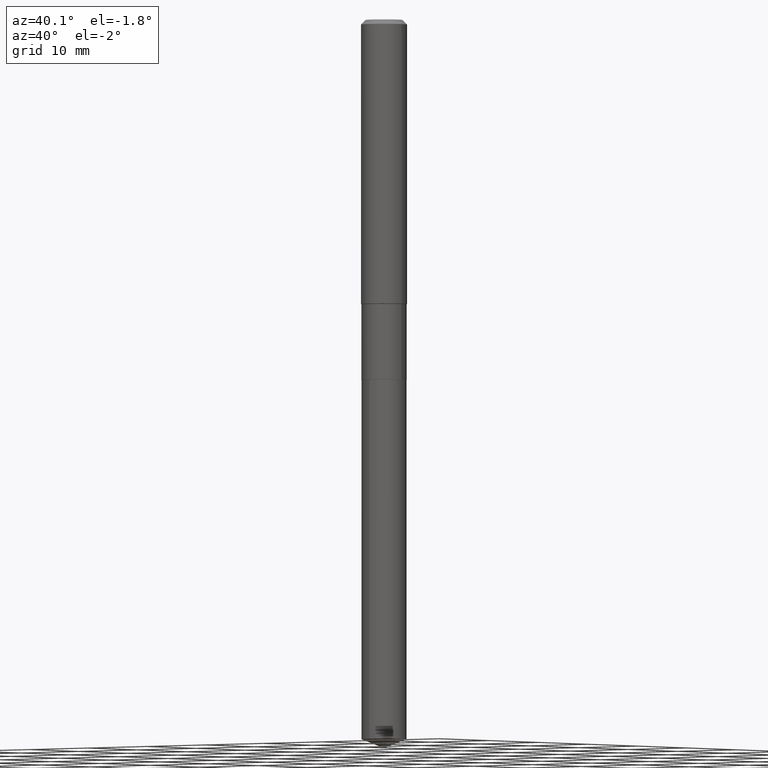
[diagram: clean part render]
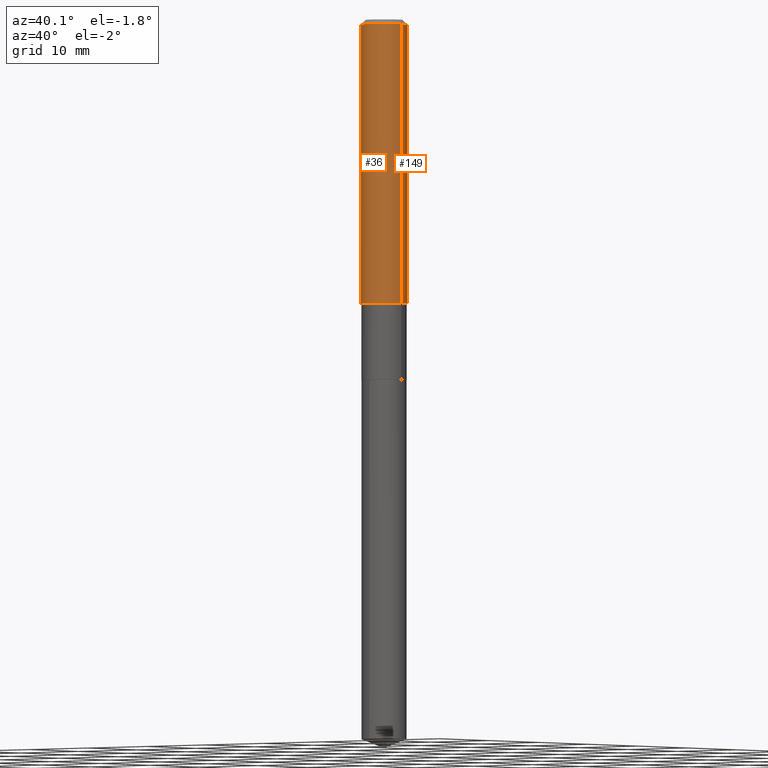
[diagram: same view with one multi-face feature highlighted, each face labeled with its STEP entity id]
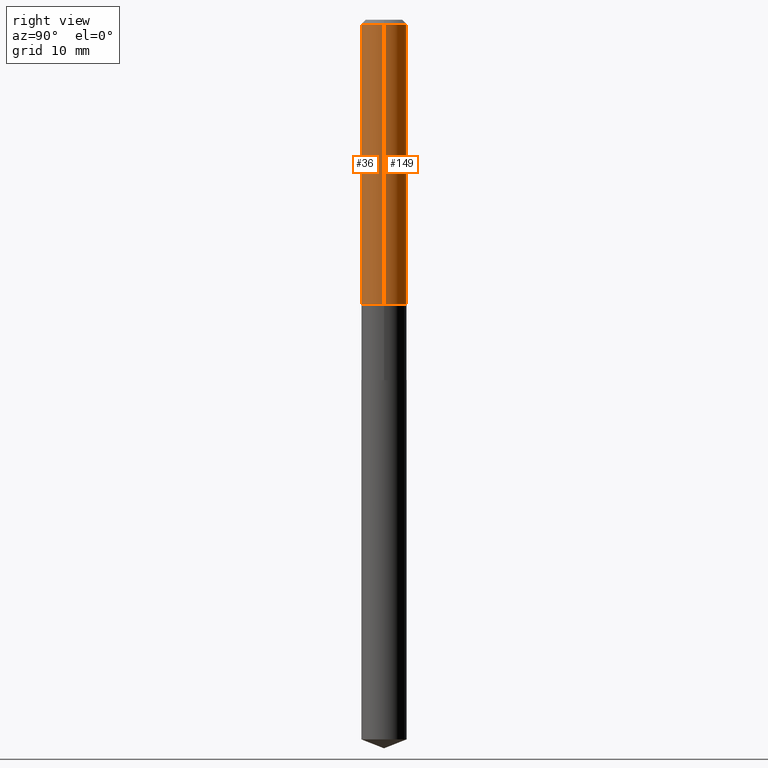
[diagram: same view with one multi-face feature highlighted, each face labeled with its STEP entity id]
A machine part, auxiliary view. The highlighted faces form ONE feature: a constant-radius fillet chain: 2 tangent blend faces with common blend radius 2.9997 mm. The faces share edges in the B-rep.
A second angle (right view) of the same feature is appended — it is thin or edge-on in the first view.
Their STEP definitions:
[1] entity #36 (Cylinder):
#6 = CARTESIAN_POINT ( 'NONE',  ( 0.1180999999999999966, -9.071566814582237199E-16, -0.02362000000000014088 ) ) ;
#12 = VECTOR ( 'NONE', #468, 39.37007874015748143 ) ;
#31 = VERTEX_POINT ( 'NONE', #6 ) ;
#36 = ADVANCED_FACE ( 'NONE', ( #271 ), #421, .T. ) ;
#46 = LINE ( 'NONE', #388, #471 ) ;
#49 = CARTESIAN_POINT ( 'NONE',  ( 0.1181000000000000799, -8.246878922347486570E-16, 5.758764772215004644E-30 ) ) ;
#51 = CARTESIAN_POINT ( 'NONE',  ( 0.000000000000000000, 0.000000000000000000, 0.000000000000000000 ) ) ;
#79 = ORIENTED_EDGE ( 'NONE', *, *, #236, .F. ) ;
#84 = CARTESIAN_POINT ( 'NONE',  ( -0.1180999999999999966, -1.749730069599430358E-15, -0.02362000000000014088 ) ) ;
#114 = AXIS2_PLACEMENT_3D ( 'NONE', #51, #115, #255 ) ;
#115 = DIRECTION ( 'NONE',  ( -2.445468806185136597E-29, 3.491481338843145583E-15, 1.000000000000000000 ) ) ;
#117 = VERTEX_POINT ( 'NONE', #84 ) ;
#123 = AXIS2_PLACEMENT_3D ( 'NONE', #459, #344, #454 ) ;
#152 = CARTESIAN_POINT ( 'NONE',  ( 0.1181000000000001632, -5.919981184075493072E-15, -1.459349999999999925 ) ) ;
#172 = EDGE_CURVE ( 'NONE', #364, #117, #46, .T. ) ;
#178 = CIRCLE ( 'NONE', #456, 0.1180999999999999966 ) ;
#185 = EDGE_LOOP ( 'NONE', ( #211, #291, #354, #79 ) ) ;
#201 = DIRECTION ( 'NONE',  ( -2.445468806185136877E-29, 3.491481338843145188E-15, 1.000000000000000000 ) ) ;
#211 = ORIENTED_EDGE ( 'NONE', *, *, #172, .F. ) ;
#224 = EDGE_CURVE ( 'NONE', #364, #312, #336, .T. ) ;
#226 = CARTESIAN_POINT ( 'NONE',  ( 5.776197320209327532E-31, -8.246878922347559293E-17, -0.02362000000000014088 ) ) ;
#236 = EDGE_CURVE ( 'NONE', #117, #31, #178, .T. ) ;
#255 = DIRECTION ( 'NONE',  ( 1.000000000000000000, -6.982962677686266711E-15, 4.876176775795936353E-29 ) ) ;
#259 = DIRECTION ( 'NONE',  ( 1.000000000000000000, -6.982962677686266711E-15, 0.000000000000000000 ) ) ;
#271 = FACE_OUTER_BOUND ( 'NONE', #185, .T. ) ;
#291 = ORIENTED_EDGE ( 'NONE', *, *, #224, .T. ) ;
#312 = VERTEX_POINT ( 'NONE', #152 ) ;
#323 = EDGE_CURVE ( 'NONE', #312, #31, #390, .T. ) ;
#336 = CIRCLE ( 'NONE', #123, 0.1181000000000001632 ) ;
#344 = DIRECTION ( 'NONE',  ( -2.445468806185136597E-29, 3.491481338843145583E-15, 1.000000000000000000 ) ) ;
#354 = ORIENTED_EDGE ( 'NONE', *, *, #323, .T. ) ;
#364 = VERTEX_POINT ( 'NONE', #385 ) ;
#379 = DIRECTION ( 'NONE',  ( -2.445468806185136597E-29, 3.491481338843145583E-15, 1.000000000000000000 ) ) ;
#385 = CARTESIAN_POINT ( 'NONE',  ( -0.1181000000000001632, -4.256142320908064245E-15, -1.459349999999999925 ) ) ;
#388 = CARTESIAN_POINT ( 'NONE',  ( -0.1181000000000000799, 8.391509709326788873E-16, -5.809262341591047988E-30 ) ) ;
#390 = LINE ( 'NONE', #49, #12 ) ;
#421 = CYLINDRICAL_SURFACE ( 'NONE', #114, 0.1181000000000000799 ) ;
#454 = DIRECTION ( 'NONE',  ( 1.000000000000000000, -6.982962677686263555E-15, 0.000000000000000000 ) ) ;
#456 = AXIS2_PLACEMENT_3D ( 'NONE', #226, #379, #259 ) ;
#459 = CARTESIAN_POINT ( 'NONE',  ( 3.568794902306278296E-29, -5.095293291840744020E-15, -1.459349999999999925 ) ) ;
#468 = DIRECTION ( 'NONE',  ( -2.445468806185136877E-29, 3.491481338843145188E-15, 1.000000000000000000 ) ) ;
#471 = VECTOR ( 'NONE', #201, 39.37007874015748143 ) ;
[2] entity #149 (Cylinder):
#6 = CARTESIAN_POINT ( 'NONE',  ( 0.1180999999999999966, -9.071566814582237199E-16, -0.02362000000000014088 ) ) ;
#9 = DIRECTION ( 'NONE',  ( 1.000000000000000000, -6.982962677686263555E-15, 0.000000000000000000 ) ) ;
#12 = VECTOR ( 'NONE', #468, 39.37007874015748143 ) ;
#31 = VERTEX_POINT ( 'NONE', #6 ) ;
#33 = ORIENTED_EDGE ( 'NONE', *, *, #330, .F. ) ;
#46 = LINE ( 'NONE', #388, #471 ) ;
#49 = CARTESIAN_POINT ( 'NONE',  ( 0.1181000000000000799, -8.246878922347486570E-16, 5.758764772215004644E-30 ) ) ;
#58 = CARTESIAN_POINT ( 'NONE',  ( 0.000000000000000000, 0.000000000000000000, 0.000000000000000000 ) ) ;
#84 = CARTESIAN_POINT ( 'NONE',  ( -0.1180999999999999966, -1.749730069599430358E-15, -0.02362000000000014088 ) ) ;
#93 = FACE_OUTER_BOUND ( 'NONE', #441, .T. ) ;
#98 = EDGE_CURVE ( 'NONE', #312, #364, #197, .T. ) ;
#99 = CIRCLE ( 'NONE', #289, 0.1180999999999999966 ) ;
#103 = ORIENTED_EDGE ( 'NONE', *, *, #172, .T. ) ;
#117 = VERTEX_POINT ( 'NONE', #84 ) ;
#149 = ADVANCED_FACE ( 'NONE', ( #93 ), #395, .T. ) ;
#152 = CARTESIAN_POINT ( 'NONE',  ( 0.1181000000000001632, -5.919981184075493072E-15, -1.459349999999999925 ) ) ;
#172 = EDGE_CURVE ( 'NONE', #364, #117, #46, .T. ) ;
#197 = CIRCLE ( 'NONE', #465, 0.1181000000000001632 ) ;
#201 = DIRECTION ( 'NONE',  ( -2.445468806185136877E-29, 3.491481338843145188E-15, 1.000000000000000000 ) ) ;
#202 = DIRECTION ( 'NONE',  ( -2.445468806185136597E-29, 3.491481338843145583E-15, 1.000000000000000000 ) ) ;
#210 = DIRECTION ( 'NONE',  ( 1.000000000000000000, -6.982962677686266711E-15, 0.000000000000000000 ) ) ;
#231 = DIRECTION ( 'NONE',  ( -2.445468806185136597E-29, 3.491481338843145583E-15, 1.000000000000000000 ) ) ;
#269 = DIRECTION ( 'NONE',  ( 1.000000000000000000, -6.982962677686266711E-15, 4.876176775795936353E-29 ) ) ;
#273 = CARTESIAN_POINT ( 'NONE',  ( 3.568794902306278296E-29, -5.095293291840744020E-15, -1.459349999999999925 ) ) ;
#276 = CARTESIAN_POINT ( 'NONE',  ( 5.776197320209327532E-31, -8.246878922347559293E-17, -0.02362000000000014088 ) ) ;
#289 = AXIS2_PLACEMENT_3D ( 'NONE', #276, #202, #210 ) ;
#304 = ORIENTED_EDGE ( 'NONE', *, *, #323, .F. ) ;
#306 = AXIS2_PLACEMENT_3D ( 'NONE', #58, #357, #269 ) ;
#312 = VERTEX_POINT ( 'NONE', #152 ) ;
#323 = EDGE_CURVE ( 'NONE', #312, #31, #390, .T. ) ;
#330 = EDGE_CURVE ( 'NONE', #31, #117, #99, .T. ) ;
#357 = DIRECTION ( 'NONE',  ( -2.445468806185136597E-29, 3.491481338843145583E-15, 1.000000000000000000 ) ) ;
#364 = VERTEX_POINT ( 'NONE', #385 ) ;
#385 = CARTESIAN_POINT ( 'NONE',  ( -0.1181000000000001632, -4.256142320908064245E-15, -1.459349999999999925 ) ) ;
#388 = CARTESIAN_POINT ( 'NONE',  ( -0.1181000000000000799, 8.391509709326788873E-16, -5.809262341591047988E-30 ) ) ;
#390 = LINE ( 'NONE', #49, #12 ) ;
#395 = CYLINDRICAL_SURFACE ( 'NONE', #306, 0.1181000000000000799 ) ;
#441 = EDGE_LOOP ( 'NONE', ( #457, #103, #33, #304 ) ) ;
#457 = ORIENTED_EDGE ( 'NONE', *, *, #98, .T. ) ;
#465 = AXIS2_PLACEMENT_3D ( 'NONE', #273, #231, #9 ) ;
#468 = DIRECTION ( 'NONE',  ( -2.445468806185136877E-29, 3.491481338843145188E-15, 1.000000000000000000 ) ) ;
#471 = VECTOR ( 'NONE', #201, 39.37007874015748143 ) ;